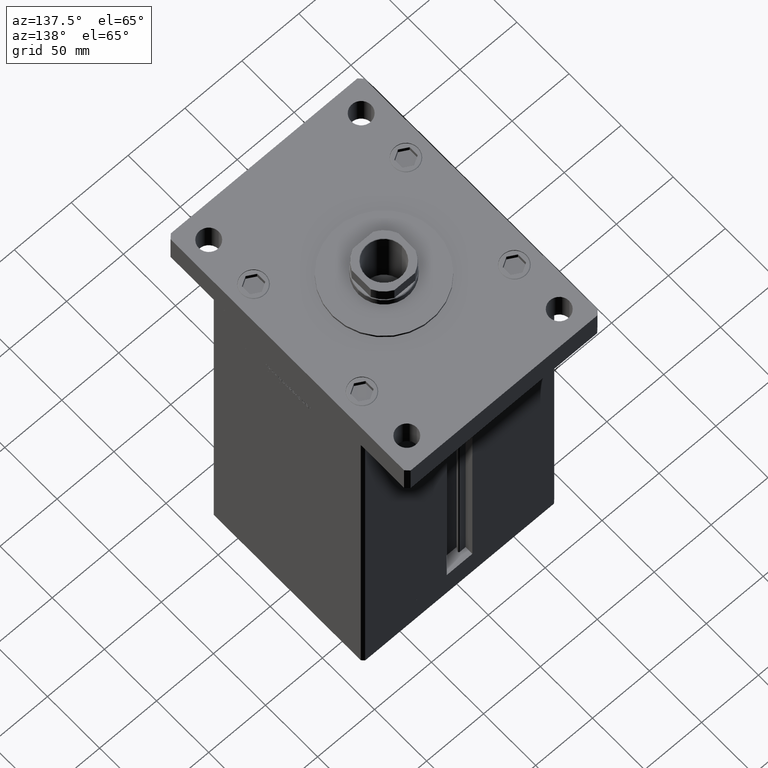
[diagram: clean part render]
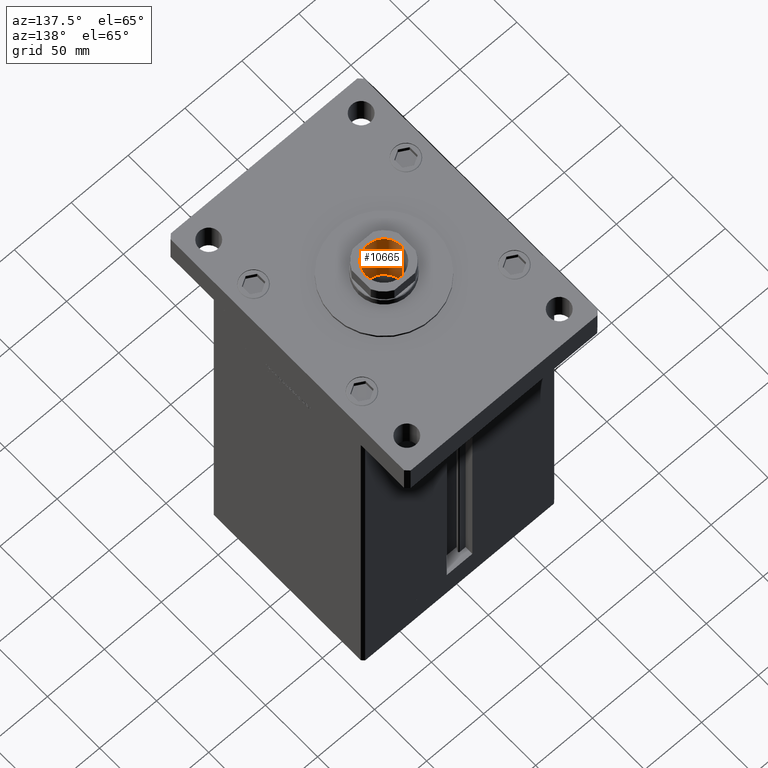
[diagram: same view with one face highlighted and labeled with its STEP entity id]
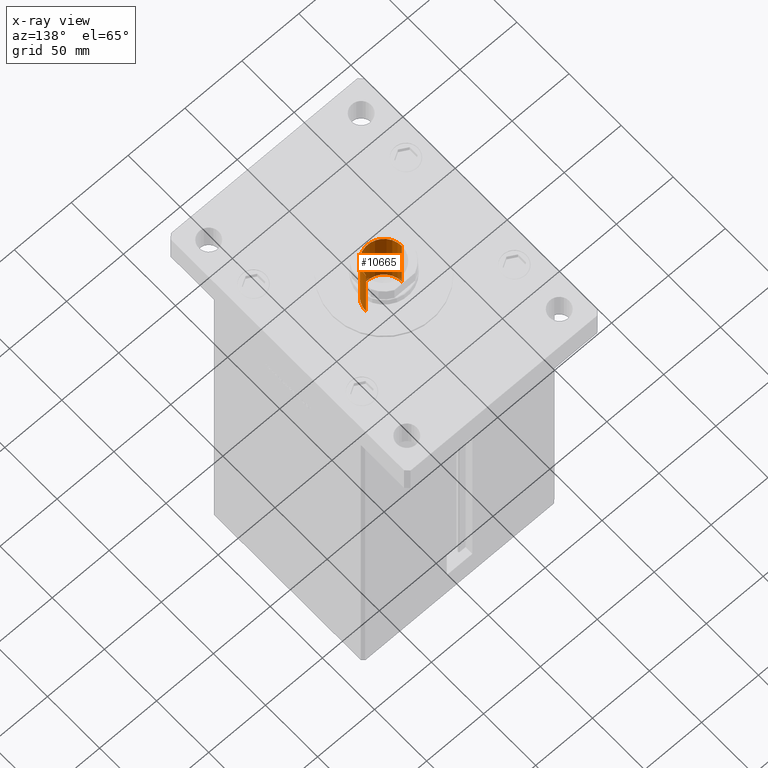
[diagram: x-ray of the same camera — body ghosted, the highlighted face saturated]
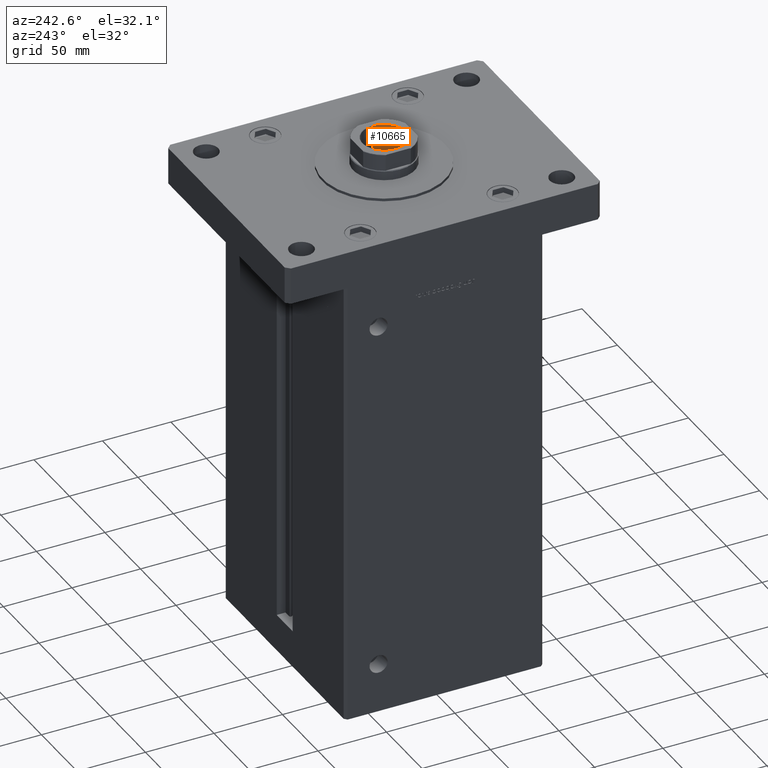
[diagram: same view with one face highlighted and labeled with its STEP entity id]
A machine part, auxiliary view. The second image highlights one B-rep face of the part: STEP entity #10665.
The next image is the same camera in x-ray: the body ghosted, the highlighted face saturated — about 1% of this face is hidden behind the body in this view.
A second angle (auxiliary view) of the same face is appended — the face is thin or edge-on in the first view.
In plain terms, the highlighted cylindrical surface (edge-blend (fillet) strip) has radius 15.75 mm, axis along (0, 0, 1).
Its self-contained STEP definition (entity closure, byte-faithful):
#735 = DIRECTION ( 'NONE',  ( 0.000000000000000000, 0.000000000000000000, 1.000000000000000000 ) ) ;
#2977 = CIRCLE ( 'NONE', #4722, 15.74999999999998934 ) ;
#3254 = ORIENTED_EDGE ( 'NONE', *, *, #8305, .T. ) ;
#3716 = CARTESIAN_POINT ( 'NONE',  ( 0.000000000000000000, 0.000000000000000000, 339.9999999999999432 ) ) ;
#4722 = AXIS2_PLACEMENT_3D ( 'NONE', #49545, #15990, #33298 ) ;
#7149 = CARTESIAN_POINT ( 'NONE',  ( 15.74999999999998934, 0.000000000000000000, 285.0000000000000000 ) ) ;
#8305 = EDGE_CURVE ( 'NONE', #48717, #43747, #40394, .T. ) ;
#8956 = VERTEX_POINT ( 'NONE', #30421 ) ;
#9936 = CARTESIAN_POINT ( 'NONE',  ( 0.000000000000000000, 0.000000000000000000, 339.7000000000000455 ) ) ;
#10665 = ADVANCED_FACE ( 'NONE', ( #37775 ), #46706, .F. ) ;
#12120 = EDGE_CURVE ( 'NONE', #48717, #37637, #2977, .T. ) ;
#13260 = EDGE_CURVE ( 'NONE', #43747, #8956, #40047, .T. ) ;
#15520 = CARTESIAN_POINT ( 'NONE',  ( -15.74999999999999289, 1.928818708657080556E-15, 339.9999999999999432 ) ) ;
#15990 = DIRECTION ( 'NONE',  ( -0.000000000000000000, -0.000000000000000000, 1.000000000000000000 ) ) ;
#21545 = DIRECTION ( 'NONE',  ( -0.000000000000000000, -0.000000000000000000, 1.000000000000000000 ) ) ;
#29010 = CARTESIAN_POINT ( 'NONE',  ( -15.74999999999999289, 1.928818708657080556E-15, 339.7000000000000455 ) ) ;
#29658 = VECTOR ( 'NONE', #39882, 1000.000000000000000 ) ;
#30421 = CARTESIAN_POINT ( 'NONE',  ( 15.74999999999999289, 0.000000000000000000, 339.7000000000000455 ) ) ;
#30634 = AXIS2_PLACEMENT_3D ( 'NONE', #3716, #21545, #36761 ) ;
#30755 = CARTESIAN_POINT ( 'NONE',  ( 15.74999999999999289, 0.000000000000000000, 339.9999999999999432 ) ) ;
#31191 = EDGE_LOOP ( 'NONE', ( #33543, #3254, #35817, #35452 ) ) ;
#33298 = DIRECTION ( 'NONE',  ( 1.000000000000000000, 0.000000000000000000, 0.000000000000000000 ) ) ;
#33543 = ORIENTED_EDGE ( 'NONE', *, *, #12120, .F. ) ;
#33815 = VECTOR ( 'NONE', #35347, 1000.000000000000000 ) ;
#35347 = DIRECTION ( 'NONE',  ( -0.000000000000000000, -0.000000000000000000, 1.000000000000000000 ) ) ;
#35452 = ORIENTED_EDGE ( 'NONE', *, *, #52887, .F. ) ;
#35817 = ORIENTED_EDGE ( 'NONE', *, *, #13260, .T. ) ;
#36761 = DIRECTION ( 'NONE',  ( 1.000000000000000000, 0.000000000000000000, 0.000000000000000000 ) ) ;
#37637 = VERTEX_POINT ( 'NONE', #7149 ) ;
#37775 = FACE_OUTER_BOUND ( 'NONE', #31191, .T. ) ;
#38362 = AXIS2_PLACEMENT_3D ( 'NONE', #9936, #735, #46491 ) ;
#39668 = LINE ( 'NONE', #30755, #33815 ) ;
#39882 = DIRECTION ( 'NONE',  ( -0.000000000000000000, -0.000000000000000000, 1.000000000000000000 ) ) ;
#40047 = CIRCLE ( 'NONE', #38362, 15.74999999999999289 ) ;
#40394 = LINE ( 'NONE', #15520, #29658 ) ;
#43747 = VERTEX_POINT ( 'NONE', #29010 ) ;
#46491 = DIRECTION ( 'NONE',  ( 1.000000000000000000, 0.000000000000000000, 0.000000000000000000 ) ) ;
#46706 = CYLINDRICAL_SURFACE ( 'NONE', #30634, 15.74999999999999289 ) ;
#48717 = VERTEX_POINT ( 'NONE', #49750 ) ;
#49545 = CARTESIAN_POINT ( 'NONE',  ( 0.000000000000000000, 0.000000000000000000, 285.0000000000000000 ) ) ;
#49750 = CARTESIAN_POINT ( 'NONE',  ( -15.74999999999998934, 1.928818708657080161E-15, 285.0000000000000000 ) ) ;
#52887 = EDGE_CURVE ( 'NONE', #37637, #8956, #39668, .T. ) ;